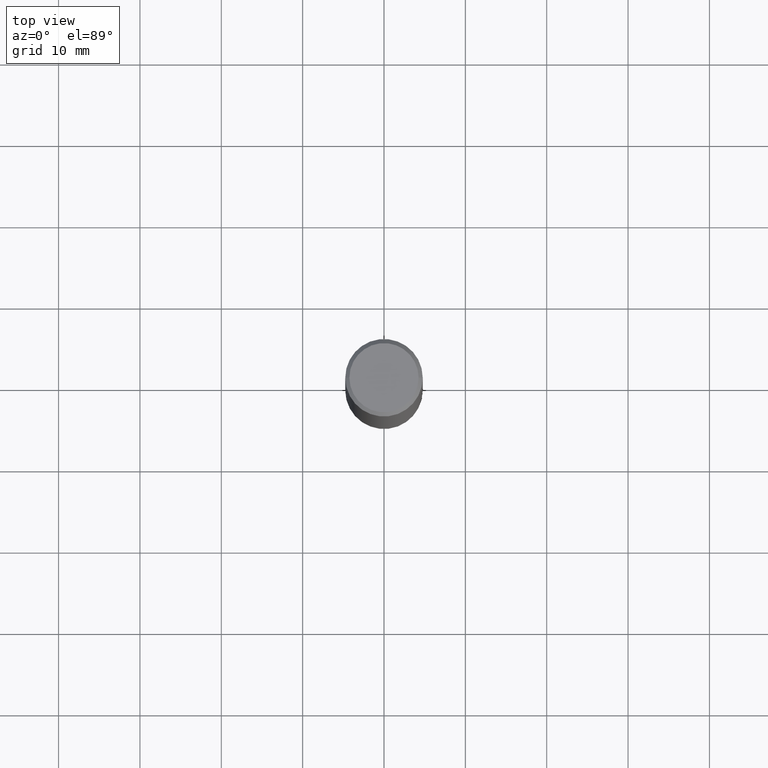
[diagram: clean part render]
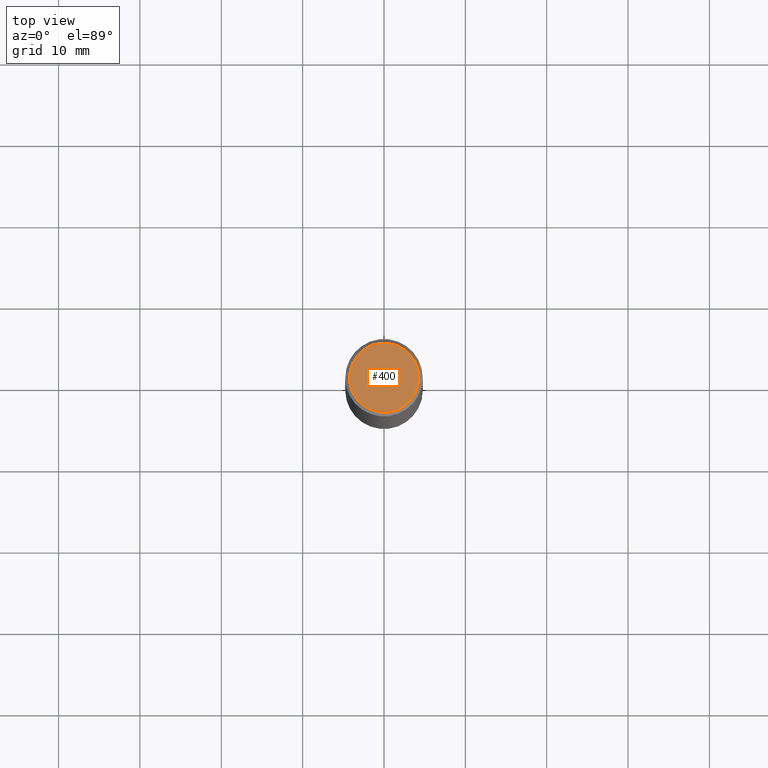
[diagram: same view with one face highlighted and labeled with its STEP entity id]
A machine part, top view. The second image highlights one B-rep face of the part: STEP entity #400.
In plain terms, the highlighted planar face has unit normal (0, -0, -1).
Its self-contained STEP definition (entity closure, byte-faithful):
#11 = DIRECTION ( 'NONE',  ( -2.445468806185136597E-29, 3.491481338843145583E-15, 1.000000000000000000 ) ) ;
#15 = EDGE_CURVE ( 'NONE', #67, #95, #146, .T. ) ;
#16 = DIRECTION ( 'NONE',  ( -1.000000000000000000, 6.982962677686265922E-15, -4.876176775795935793E-29 ) ) ;
#59 = ORIENTED_EDGE ( 'NONE', *, *, #369, .T. ) ;
#67 = VERTEX_POINT ( 'NONE', #91 ) ;
#78 = ORIENTED_EDGE ( 'NONE', *, *, #15, .T. ) ;
#88 = CARTESIAN_POINT ( 'NONE',  ( 0.000000000000000000, 0.000000000000000000, 0.000000000000000000 ) ) ;
#91 = CARTESIAN_POINT ( 'NONE',  ( -0.1674999999999992606, 1.204561061900875919E-15, -8.301862719484078158E-30 ) ) ;
#95 = VERTEX_POINT ( 'NONE', #193 ) ;
#124 = CARTESIAN_POINT ( 'NONE',  ( 0.000000000000000000, 0.000000000000000000, 0.000000000000000000 ) ) ;
#146 = CIRCLE ( 'NONE', #221, 0.1674999999999992606 ) ;
#152 = AXIS2_PLACEMENT_3D ( 'NONE', #88, #476, #434 ) ;
#155 = AXIS2_PLACEMENT_3D ( 'NONE', #363, #207, #16 ) ;
#193 = CARTESIAN_POINT ( 'NONE',  ( 0.1674999999999992606, -1.252653207992873555E-15, 8.469775550109204352E-30 ) ) ;
#204 = EDGE_LOOP ( 'NONE', ( #78, #59 ) ) ;
#207 = DIRECTION ( 'NONE',  ( 2.438088387897960049E-29, -3.491481338843145188E-15, -1.000000000000000000 ) ) ;
#221 = AXIS2_PLACEMENT_3D ( 'NONE', #124, #11, #427 ) ;
#296 = FACE_OUTER_BOUND ( 'NONE', #204, .T. ) ;
#363 = CARTESIAN_POINT ( 'NONE',  ( 1.169646248512444468E-15, 0.1674999999999992606, -5.848231242562243045E-16 ) ) ;
#367 = CIRCLE ( 'NONE', #152, 0.1674999999999992606 ) ;
#369 = EDGE_CURVE ( 'NONE', #95, #67, #367, .T. ) ;
#400 = ADVANCED_FACE ( 'NONE', ( #296 ), #470, .F. ) ;
#427 = DIRECTION ( 'NONE',  ( 1.000000000000000000, -6.982962677686266711E-15, 4.876176775795935793E-29 ) ) ;
#434 = DIRECTION ( 'NONE',  ( 1.000000000000000000, -6.982962677686266711E-15, 4.876176775795935793E-29 ) ) ;
#470 = PLANE ( 'NONE',  #155 ) ;
#476 = DIRECTION ( 'NONE',  ( -2.445468806185136597E-29, 3.491481338843145583E-15, 1.000000000000000000 ) ) ;